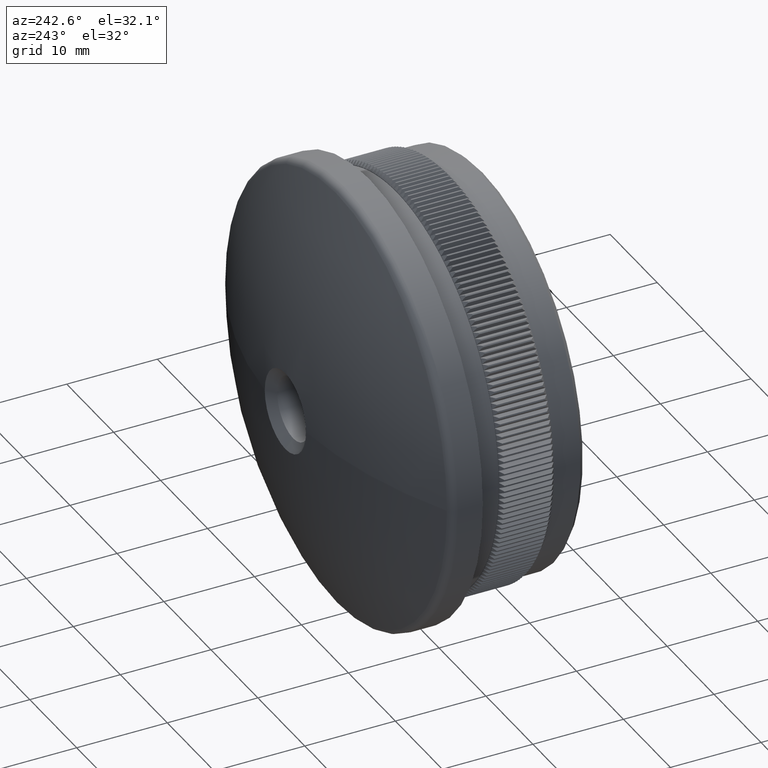
[diagram: clean part render]
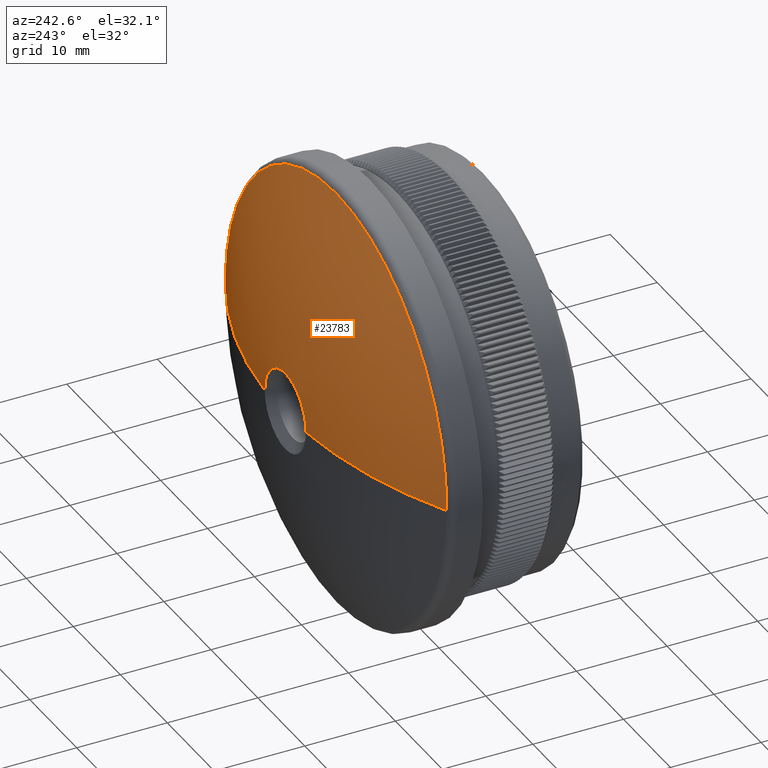
[diagram: same view with one face highlighted and labeled with its STEP entity id]
A machine part, auxiliary view. The second image highlights one B-rep face of the part: STEP entity #23783.
In plain terms, the highlighted spherical surface has radius 51.0764 mm.
Its self-contained STEP definition (entity closure, byte-faithful):
#2158 = DIRECTION ( 'NONE',  ( 0.0000000000000000000, 1.000000000000000000, 0.0000000000000000000 ) ) ;
#4372 = ORIENTED_EDGE ( 'NONE', *, *, #37257, .T. ) ;
#6151 = VERTEX_POINT ( 'NONE', #26823 ) ;
#6334 = DIRECTION ( 'NONE',  ( 0.0000000000000000000, 0.0000000000000000000, -1.000000000000000000 ) ) ;
#6445 = SPHERICAL_SURFACE ( 'NONE', #12652, 51.07639209225692400 ) ;
#6590 = DIRECTION ( 'NONE',  ( 0.0000000000000000000, 0.0000000000000000000, -1.000000000000000000 ) ) ;
#8507 = CIRCLE ( 'NONE', #18032, 4.387560963952704900 ) ;
#8801 = VERTEX_POINT ( 'NONE', #46923 ) ;
#9424 = DIRECTION ( 'NONE',  ( 1.000000000000000000, 0.0000000000000000000, 0.0000000000000000000 ) ) ;
#9913 = FACE_OUTER_BOUND ( 'NONE', #51010, .T. ) ;
#12652 = AXIS2_PLACEMENT_3D ( 'NONE', #36444, #36068, #9424 ) ;
#12695 = DIRECTION ( 'NONE',  ( -0.0000000000000000000, -1.000000000000000000, -0.0000000000000000000 ) ) ;
#12917 = VERTEX_POINT ( 'NONE', #15997 ) ;
#14780 = CARTESIAN_POINT ( 'NONE',  ( 0.0000000000000000000, -29.10639209225691100, 0.0000000000000000000 ) ) ;
#15761 = VERTEX_POINT ( 'NONE', #45476 ) ;
#15997 = CARTESIAN_POINT ( 'NONE',  ( 0.0000000000000000000, 21.78120107100405500, 4.387560963952708400 ) ) ;
#17905 = AXIS2_PLACEMENT_3D ( 'NONE', #37470, #2158, #6590 ) ;
#18032 = AXIS2_PLACEMENT_3D ( 'NONE', #45821, #27836, #23560 ) ;
#19129 = AXIS2_PLACEMENT_3D ( 'NONE', #14780, #45595, #45040 ) ;
#19143 = EDGE_CURVE ( 'NONE', #8801, #12917, #8507, .T. ) ;
#20307 = EDGE_CURVE ( 'NONE', #8801, #34373, #50703, .T. ) ;
#20731 = ORIENTED_EDGE ( 'NONE', *, *, #27835, .T. ) ;
#21570 = DIRECTION ( 'NONE',  ( 0.0000000000000000000, 1.000000000000000000, 0.0000000000000000000 ) ) ;
#22147 = CIRCLE ( 'NONE', #17905, 23.61229368835818200 ) ;
#23237 = EDGE_CURVE ( 'NONE', #12917, #15761, #46713, .T. ) ;
#23560 = DIRECTION ( 'NONE',  ( 0.0000000000000000000, 0.0000000000000000000, -1.000000000000000000 ) ) ;
#23783 = ADVANCED_FACE ( 'NONE', ( #9913 ), #6445, .T. ) ;
#24292 = ORIENTED_EDGE ( 'NONE', *, *, #20307, .F. ) ;
#24677 = EDGE_CURVE ( 'NONE', #6151, #41847, #38337, .T. ) ;
#26823 = CARTESIAN_POINT ( 'NONE',  ( -23.61229368835817500, 16.18441730586144800, 2.891671988597509000E-015 ) ) ;
#27835 = EDGE_CURVE ( 'NONE', #15761, #6151, #40252, .T. ) ;
#27836 = DIRECTION ( 'NONE',  ( -0.0000000000000000000, -1.000000000000000000, -0.0000000000000000000 ) ) ;
#31647 = CARTESIAN_POINT ( 'NONE',  ( 23.61229368835817500, 16.18441730586144800, 0.0000000000000000000 ) ) ;
#32190 = CARTESIAN_POINT ( 'NONE',  ( 0.0000000000000000000, -29.10639209225691100, 0.0000000000000000000 ) ) ;
#32942 = DIRECTION ( 'NONE',  ( -1.000000000000000000, 0.0000000000000000000, 0.0000000000000000000 ) ) ;
#34373 = VERTEX_POINT ( 'NONE', #31647 ) ;
#34991 = DIRECTION ( 'NONE',  ( 0.0000000000000000000, 0.0000000000000000000, -1.000000000000000000 ) ) ;
#35886 = CARTESIAN_POINT ( 'NONE',  ( 2.924597004269183500E-015, 16.18441730586144800, 23.61229368835818200 ) ) ;
#36068 = DIRECTION ( 'NONE',  ( 0.0000000000000000000, 0.0000000000000000000, 1.000000000000000000 ) ) ;
#36444 = CARTESIAN_POINT ( 'NONE',  ( 0.0000000000000000000, -29.10639209225691100, 0.0000000000000000000 ) ) ;
#37257 = EDGE_CURVE ( 'NONE', #41847, #34373, #22147, .T. ) ;
#37470 = CARTESIAN_POINT ( 'NONE',  ( 0.0000000000000000000, 16.18441730586144800, 0.0000000000000000000 ) ) ;
#38337 = CIRCLE ( 'NONE', #41308, 23.61229368835818200 ) ;
#40252 = CIRCLE ( 'NONE', #19129, 51.07639209225692400 ) ;
#41308 = AXIS2_PLACEMENT_3D ( 'NONE', #57346, #21570, #34991 ) ;
#41847 = VERTEX_POINT ( 'NONE', #35886 ) ;
#43142 = CARTESIAN_POINT ( 'NONE',  ( 0.0000000000000000000, 21.78120107100405500, 0.0000000000000000000 ) ) ;
#45040 = DIRECTION ( 'NONE',  ( 1.000000000000000000, 0.0000000000000000000, -1.224646799147353200E-016 ) ) ;
#45476 = CARTESIAN_POINT ( 'NONE',  ( -4.387560963952704900, 21.78120107100405500, 1.714496618827182700E-015 ) ) ;
#45595 = DIRECTION ( 'NONE',  ( 1.224646799147353200E-016, -0.0000000000000000000, 1.000000000000000000 ) ) ;
#45661 = AXIS2_PLACEMENT_3D ( 'NONE', #43142, #12695, #52429 ) ;
#45821 = CARTESIAN_POINT ( 'NONE',  ( 0.0000000000000000000, 21.78120107100405500, 0.0000000000000000000 ) ) ;
#46713 = CIRCLE ( 'NONE', #45661, 4.387560963952704900 ) ;
#46923 = CARTESIAN_POINT ( 'NONE',  ( 4.387560963952704900, 21.78120107100405500, 0.0000000000000000000 ) ) ;
#50454 = ORIENTED_EDGE ( 'NONE', *, *, #19143, .T. ) ;
#50703 = CIRCLE ( 'NONE', #52192, 51.07639209225692400 ) ;
#50934 = ORIENTED_EDGE ( 'NONE', *, *, #24677, .T. ) ;
#50964 = ORIENTED_EDGE ( 'NONE', *, *, #23237, .T. ) ;
#51010 = EDGE_LOOP ( 'NONE', ( #50454, #50964, #20731, #50934, #4372, #24292 ) ) ;
#52192 = AXIS2_PLACEMENT_3D ( 'NONE', #32190, #6334, #32942 ) ;
#52429 = DIRECTION ( 'NONE',  ( 0.0000000000000000000, 0.0000000000000000000, -1.000000000000000000 ) ) ;
#57346 = CARTESIAN_POINT ( 'NONE',  ( 0.0000000000000000000, 16.18441730586144800, 0.0000000000000000000 ) ) ;